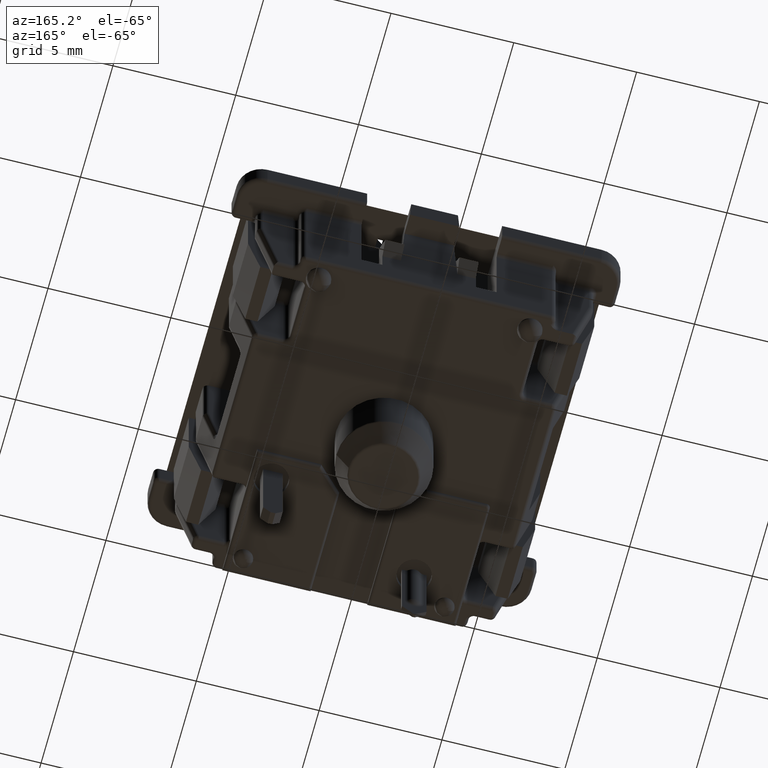
[diagram: clean part render]
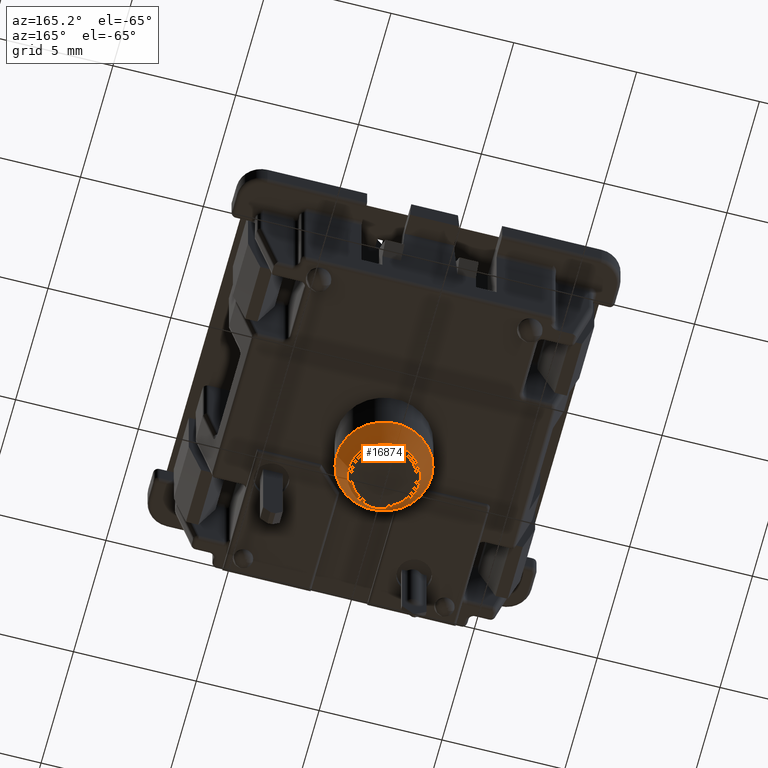
[diagram: same view with one face highlighted and labeled with its STEP entity id]
A machine part, auxiliary view. The second image highlights one B-rep face of the part: STEP entity #16874.
In plain terms, the highlighted conical surface has half-angle 28.811 deg.
Its self-contained STEP definition (entity closure, byte-faithful):
#16832=CARTESIAN_POINT('',(0.05680085445448,0.0,-0.33946015009708));
#16833=VERTEX_POINT('',#16832);
#16834=CARTESIAN_POINT('',(0.0,-6.956098E-018,-0.33946015009708));
#16835=DIRECTION('',(0.0,0.0,-1.0));
#16836=DIRECTION('',(-1.0,0.0,0.0));
#16837=AXIS2_PLACEMENT_3D('',#16834,#16835,#16836);
#16838=CIRCLE('',#16837,0.05680085445448);
#16839=EDGE_CURVE('',#16833,#16833,#16838,.T.);
#16855=CARTESIAN_POINT('',(0.0,0.0,1.375447387258409));
#16856=DIRECTION('',(0.0,0.0,1.0));
#16857=DIRECTION('',(1.0,0.0,0.0));
#16858=AXIS2_PLACEMENT_3D('',#16855,#16856,#16857);
#16859=CONICAL_SURFACE('',#16858,1.0,28.810793742973075);
#16860=CARTESIAN_POINT('',(0.07604064512998,0.0,-0.304478712505262));
#16861=VERTEX_POINT('',#16860);
#16862=CARTESIAN_POINT('',(0.0,-9.312291E-018,-0.304478712505262));
#16863=DIRECTION('',(0.0,0.0,1.0));
#16864=DIRECTION('',(-1.0,0.0,0.0));
#16865=AXIS2_PLACEMENT_3D('',#16862,#16863,#16864);
#16866=CIRCLE('',#16865,0.07604064512998);
#16867=EDGE_CURVE('',#16861,#16861,#16866,.T.);
#16868=ORIENTED_EDGE('',*,*,#16867,.F.);
#16869=EDGE_LOOP('',(#16868));
#16870=FACE_OUTER_BOUND('',#16869,.T.);
#16871=ORIENTED_EDGE('',*,*,#16839,.F.);
#16872=EDGE_LOOP('',(#16871));
#16873=FACE_BOUND('',#16872,.T.);
#16874=ADVANCED_FACE('',(#16870,#16873),#16859,.T.);